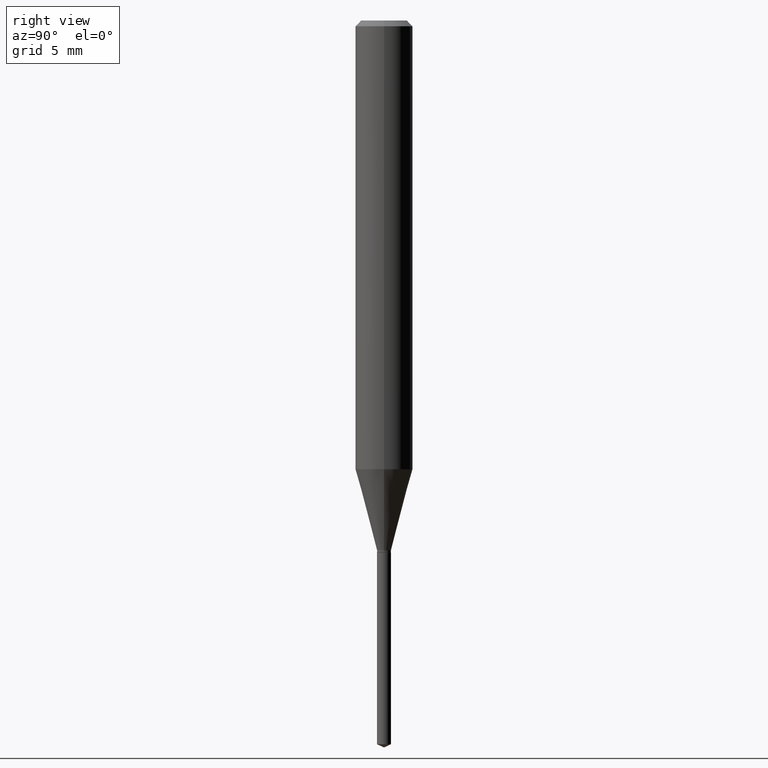
[diagram: clean part render]
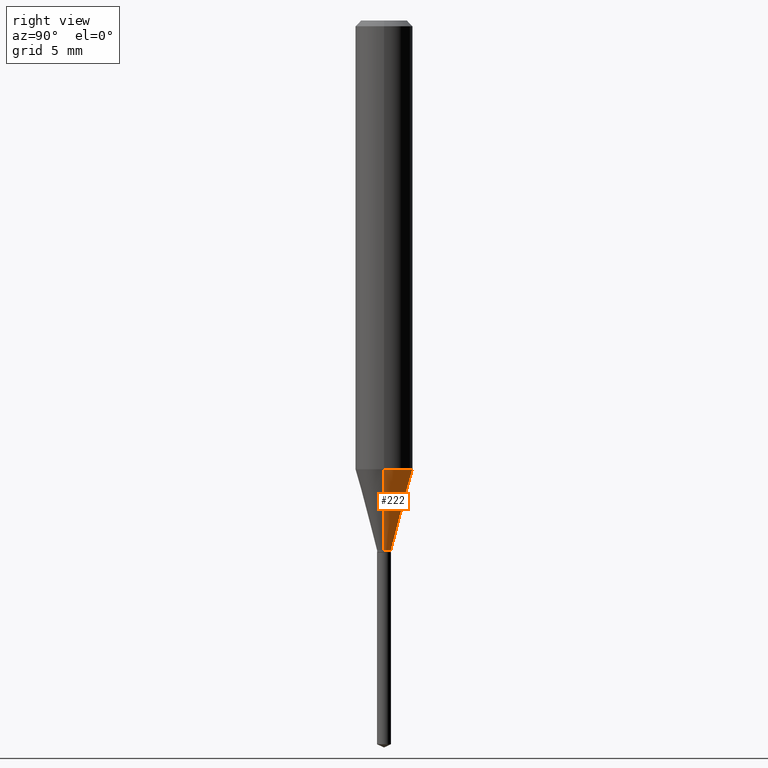
[diagram: same view with one face highlighted and labeled with its STEP entity id]
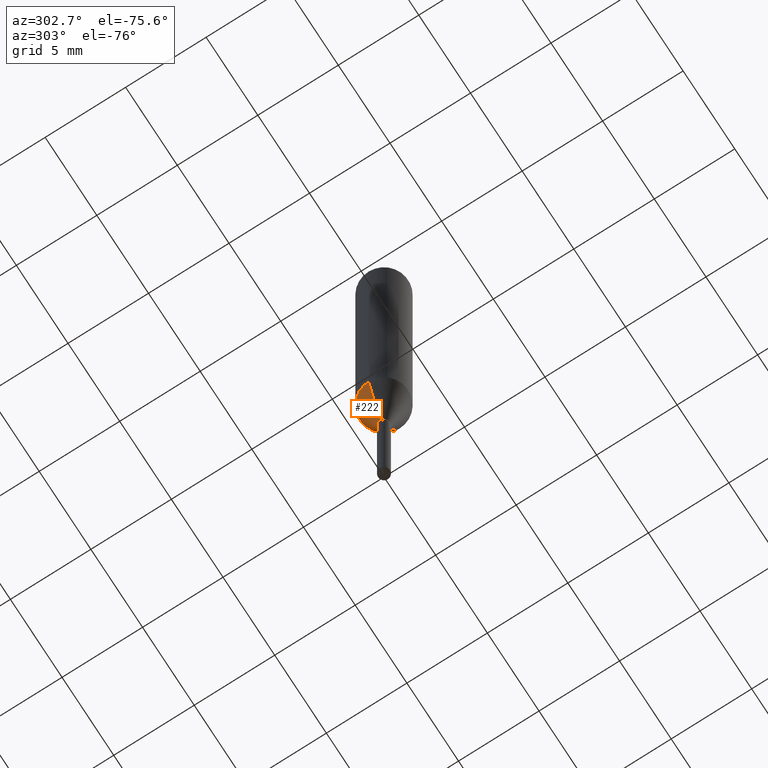
[diagram: same view with one face highlighted and labeled with its STEP entity id]
A machine part, right view. The second image highlights one B-rep face of the part: STEP entity #222.
A second angle (auxiliary view) of the same face is appended — the face is thin or edge-on in the first view.
In plain terms, the highlighted conical surface has half-angle 15 deg.
Its self-contained STEP definition (entity closure, byte-faithful):
#1 = EDGE_CURVE ( 'NONE', #202, #313, #130, .T. ) ;
#2 = DIRECTION ( 'NONE',  ( 0.2588190451025213501, 1.565188264969621968E-15, 0.9659258262890682012 ) ) ;
#5 = DIRECTION ( 'NONE',  ( 1.000000000000000000, -6.982962677686261977E-15, 0.000000000000000000 ) ) ;
#25 = EDGE_CURVE ( 'NONE', #391, #124, #413, .T. ) ;
#79 = DIRECTION ( 'NONE',  ( -0.2588190451025213501, 5.211531920934551042E-15, 0.9659258262890682012 ) ) ;
#80 = DIRECTION ( 'NONE',  ( -2.445468806185136597E-29, 3.491481338843145583E-15, 1.000000000000000000 ) ) ;
#94 = EDGE_CURVE ( 'NONE', #124, #313, #477, .T. ) ;
#101 = DIRECTION ( 'NONE',  ( -2.445468806185136597E-29, 3.491481338843145583E-15, 1.000000000000000000 ) ) ;
#102 = VECTOR ( 'NONE', #2, 39.37007874015747433 ) ;
#106 = CARTESIAN_POINT ( 'NONE',  ( 0.01434999999999999991, -3.906618470031595303E-15, -1.090200000000000058 ) ) ;
#112 = CARTESIAN_POINT ( 'NONE',  ( -0.01434999999999999991, -3.711083887569024576E-15, -1.090200000000000058 ) ) ;
#124 = VERTEX_POINT ( 'NONE', #112 ) ;
#125 = CARTESIAN_POINT ( 'NONE',  ( -0.01434999999999999991, -3.704450073025222863E-15, -1.090200000000000058 ) ) ;
#127 = EDGE_LOOP ( 'NONE', ( #435, #362, #432, #370 ) ) ;
#130 = CIRCLE ( 'NONE', #282, 0.05905000000000010241 ) ;
#152 = FACE_OUTER_BOUND ( 'NONE', #127, .T. ) ;
#197 = CARTESIAN_POINT ( 'NONE',  ( 2.666050092503035832E-29, -3.806412955606797054E-15, -1.090200000000000058 ) ) ;
#202 = VERTEX_POINT ( 'NONE', #264 ) ;
#208 = CARTESIAN_POINT ( 'NONE',  ( 0.01434999999999999991, -3.906618470031595303E-15, -1.090200000000000058 ) ) ;
#222 = ADVANCED_FACE ( 'NONE', ( #152 ), #251, .T. ) ;
#225 = DIRECTION ( 'NONE',  ( -2.445468806185136597E-29, 3.491481338843145583E-15, 1.000000000000000000 ) ) ;
#251 = CONICAL_SURFACE ( 'NONE', #393, 0.01434999999999999991, 0.2617993877991500740 ) ;
#255 = EDGE_CURVE ( 'NONE', #391, #202, #296, .T. ) ;
#264 = CARTESIAN_POINT ( 'NONE',  ( 0.05905000000000011628, -3.636298658688389161E-15, -0.9233773289016712349 ) ) ;
#282 = AXIS2_PLACEMENT_3D ( 'NONE', #430, #80, #400 ) ;
#295 = DIRECTION ( 'NONE',  ( 1.000000000000000000, -6.982962677686261977E-15, 0.000000000000000000 ) ) ;
#296 = LINE ( 'NONE', #106, #102 ) ;
#313 = VERTEX_POINT ( 'NONE', #333 ) ;
#333 = CARTESIAN_POINT ( 'NONE',  ( -0.05905000000000011628, -2.804379227104674354E-15, -0.9233773289016712349 ) ) ;
#334 = CARTESIAN_POINT ( 'NONE',  ( 2.666050092503035832E-29, -3.806412955606797054E-15, -1.090200000000000058 ) ) ;
#353 = AXIS2_PLACEMENT_3D ( 'NONE', #334, #225, #295 ) ;
#362 = ORIENTED_EDGE ( 'NONE', *, *, #94, .T. ) ;
#370 = ORIENTED_EDGE ( 'NONE', *, *, #255, .F. ) ;
#372 = VECTOR ( 'NONE', #79, 39.37007874015747433 ) ;
#391 = VERTEX_POINT ( 'NONE', #208 ) ;
#393 = AXIS2_PLACEMENT_3D ( 'NONE', #197, #101, #5 ) ;
#400 = DIRECTION ( 'NONE',  ( 1.000000000000000000, -6.982962677686268288E-15, 0.000000000000000000 ) ) ;
#413 = CIRCLE ( 'NONE', #353, 0.01434999999999999991 ) ;
#430 = CARTESIAN_POINT ( 'NONE',  ( 2.258090454167590086E-29, -3.223954712571014636E-15, -0.9233773289016712349 ) ) ;
#432 = ORIENTED_EDGE ( 'NONE', *, *, #1, .F. ) ;
#435 = ORIENTED_EDGE ( 'NONE', *, *, #25, .T. ) ;
#477 = LINE ( 'NONE', #125, #372 ) ;